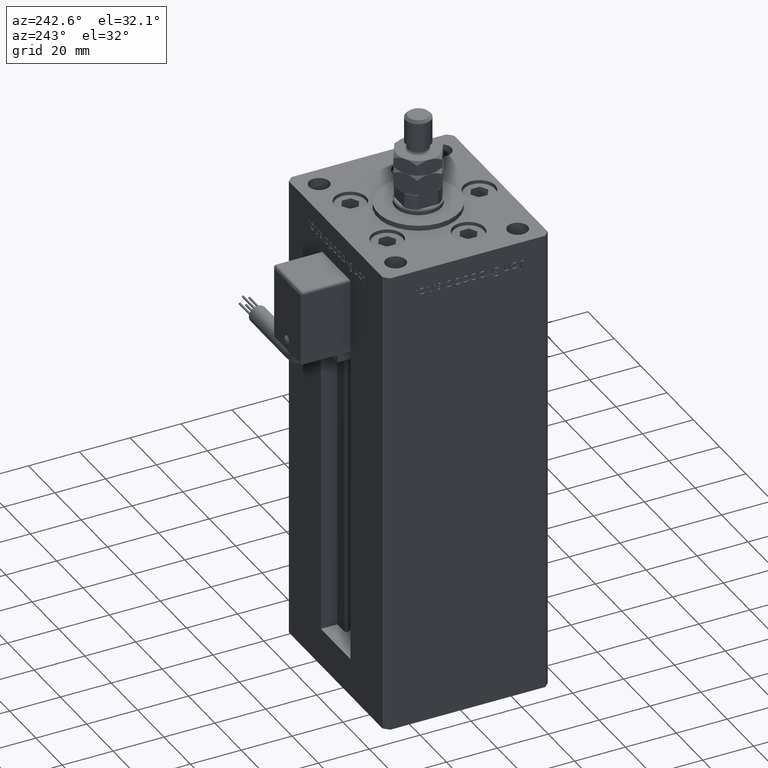
[diagram: clean part render]
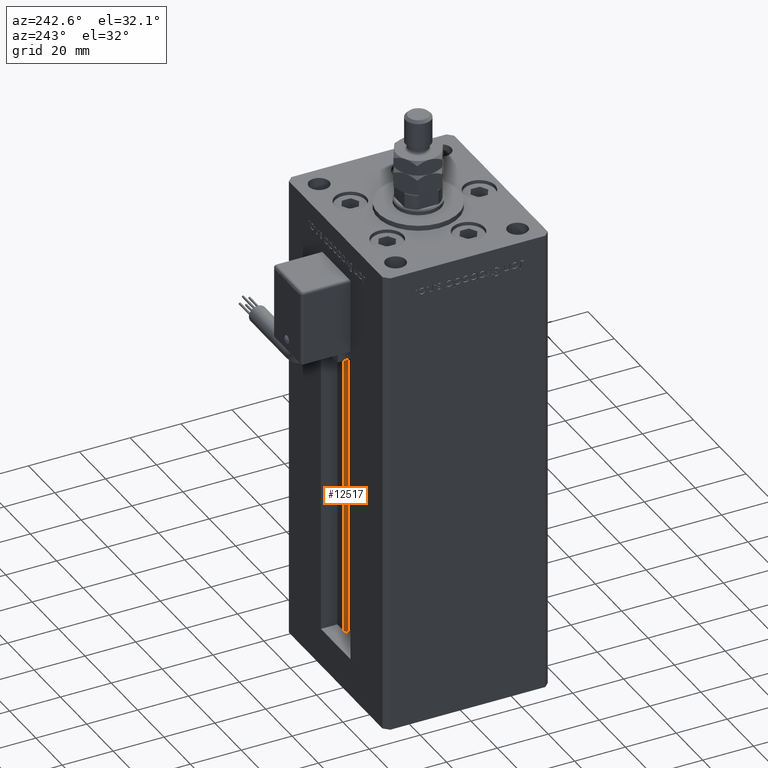
[diagram: same view with one face highlighted and labeled with its STEP entity id]
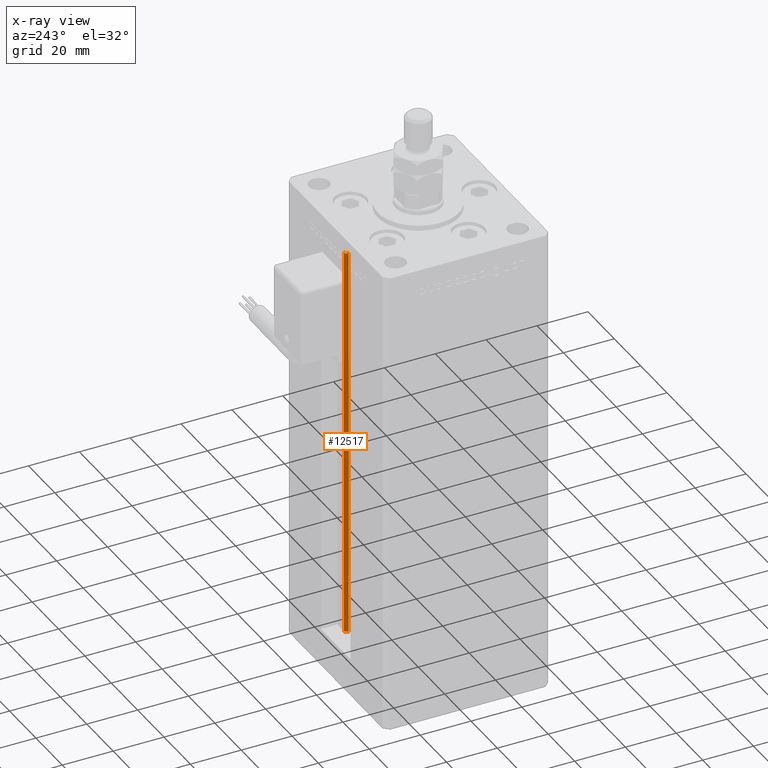
[diagram: x-ray of the same camera — body ghosted, the highlighted face saturated]
A machine part, auxiliary view. The second image highlights one B-rep face of the part: STEP entity #12517.
The next image is the same camera in x-ray: the body ghosted, the highlighted face saturated — about 0% of this face is hidden behind the body in this view.
In plain terms, the highlighted cylindrical surface (edge-blend (fillet) strip) has radius 0.9333 mm, axis along (0, 0, 1).
Its self-contained STEP definition (entity closure, byte-faithful):
#2379 = AXIS2_PLACEMENT_3D ( 'NONE', #29800, #47281, #7987 ) ;
#5910 = ORIENTED_EDGE ( 'NONE', *, *, #22998, .T. ) ;
#7592 = LINE ( 'NONE', #47729, #25064 ) ;
#7987 = DIRECTION ( 'NONE',  ( 1.000000000000000000, 0.000000000000000000, 0.000000000000000000 ) ) ;
#8920 = VERTEX_POINT ( 'NONE', #12739 ) ;
#11332 = CARTESIAN_POINT ( 'NONE',  ( 5.375042956467947164, 24.59999999999899245, 0.000000000000000000 ) ) ;
#12233 = AXIS2_PLACEMENT_3D ( 'NONE', #13217, #14067, #53383 ) ;
#12517 = ADVANCED_FACE ( 'NONE', ( #22683 ), #26707, .T. ) ;
#12739 = CARTESIAN_POINT ( 'NONE',  ( 5.375042956467948052, 24.59999999999899245, 156.0000000000000000 ) ) ;
#13217 = CARTESIAN_POINT ( 'NONE',  ( 6.183333333334001480, 25.06666666666599141, 0.000000000000000000 ) ) ;
#14067 = DIRECTION ( 'NONE',  ( -0.000000000000000000, -0.000000000000000000, 1.000000000000000000 ) ) ;
#15093 = EDGE_CURVE ( 'NONE', #20623, #26798, #7592, .T. ) ;
#15274 = AXIS2_PLACEMENT_3D ( 'NONE', #22347, #22049, #36100 ) ;
#20623 = VERTEX_POINT ( 'NONE', #21607 ) ;
#21019 = CARTESIAN_POINT ( 'NONE',  ( 6.183333333334001480, 25.99999999999999289, 156.0000000000000000 ) ) ;
#21607 = CARTESIAN_POINT ( 'NONE',  ( 6.183333333334001480, 25.99999999999999289, 0.000000000000000000 ) ) ;
#22049 = DIRECTION ( 'NONE',  ( -0.000000000000000000, -0.000000000000000000, -1.000000000000000000 ) ) ;
#22347 = CARTESIAN_POINT ( 'NONE',  ( 6.183333333334001480, 25.06666666666599141, 0.000000000000000000 ) ) ;
#22683 = FACE_OUTER_BOUND ( 'NONE', #40726, .T. ) ;
#22998 = EDGE_CURVE ( 'NONE', #28999, #8920, #47700, .T. ) ;
#23173 = ORIENTED_EDGE ( 'NONE', *, *, #48059, .T. ) ;
#25064 = VECTOR ( 'NONE', #25097, 1000.000000000000000 ) ;
#25097 = DIRECTION ( 'NONE',  ( -0.000000000000000000, -0.000000000000000000, 1.000000000000000000 ) ) ;
#25907 = CARTESIAN_POINT ( 'NONE',  ( 5.375042956467947164, 24.59999999999899245, 0.000000000000000000 ) ) ;
#26707 = CYLINDRICAL_SURFACE ( 'NONE', #12233, 0.9333333333340008142 ) ;
#26798 = VERTEX_POINT ( 'NONE', #21019 ) ;
#27141 = CIRCLE ( 'NONE', #2379, 0.9333333333340008142 ) ;
#28109 = CIRCLE ( 'NONE', #15274, 0.9333333333340008142 ) ;
#28999 = VERTEX_POINT ( 'NONE', #11332 ) ;
#29800 = CARTESIAN_POINT ( 'NONE',  ( 6.183333333334001480, 25.06666666666599141, 156.0000000000000000 ) ) ;
#31732 = ORIENTED_EDGE ( 'NONE', *, *, #15093, .F. ) ;
#36100 = DIRECTION ( 'NONE',  ( 1.000000000000000000, 0.000000000000000000, 0.000000000000000000 ) ) ;
#38256 = VECTOR ( 'NONE', #39080, 1000.000000000000000 ) ;
#39080 = DIRECTION ( 'NONE',  ( -0.000000000000000000, -0.000000000000000000, 1.000000000000000000 ) ) ;
#40726 = EDGE_LOOP ( 'NONE', ( #31732, #43529, #5910, #23173 ) ) ;
#43529 = ORIENTED_EDGE ( 'NONE', *, *, #49035, .F. ) ;
#47281 = DIRECTION ( 'NONE',  ( 0.000000000000000000, 0.000000000000000000, -1.000000000000000000 ) ) ;
#47700 = LINE ( 'NONE', #25907, #38256 ) ;
#47729 = CARTESIAN_POINT ( 'NONE',  ( 6.183333333334001480, 25.99999999999999289, 0.000000000000000000 ) ) ;
#48059 = EDGE_CURVE ( 'NONE', #8920, #26798, #27141, .T. ) ;
#49035 = EDGE_CURVE ( 'NONE', #28999, #20623, #28109, .T. ) ;
#53383 = DIRECTION ( 'NONE',  ( 1.000000000000000000, 0.000000000000000000, 0.000000000000000000 ) ) ;